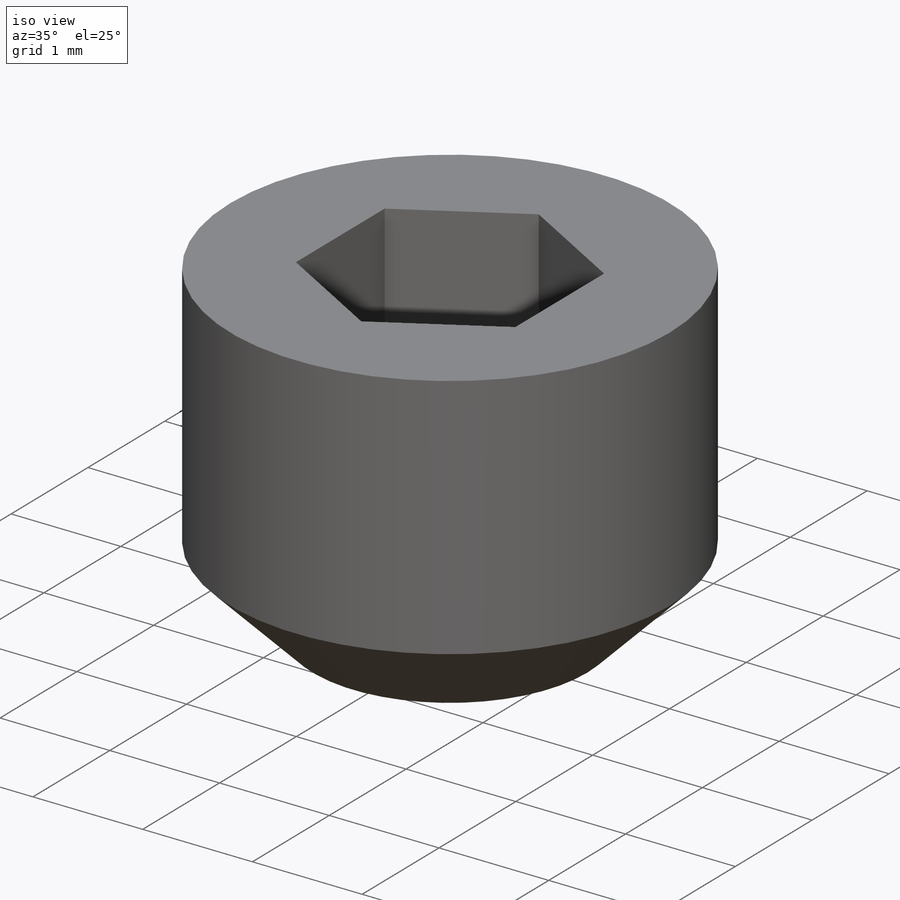
[diagram: iso view]
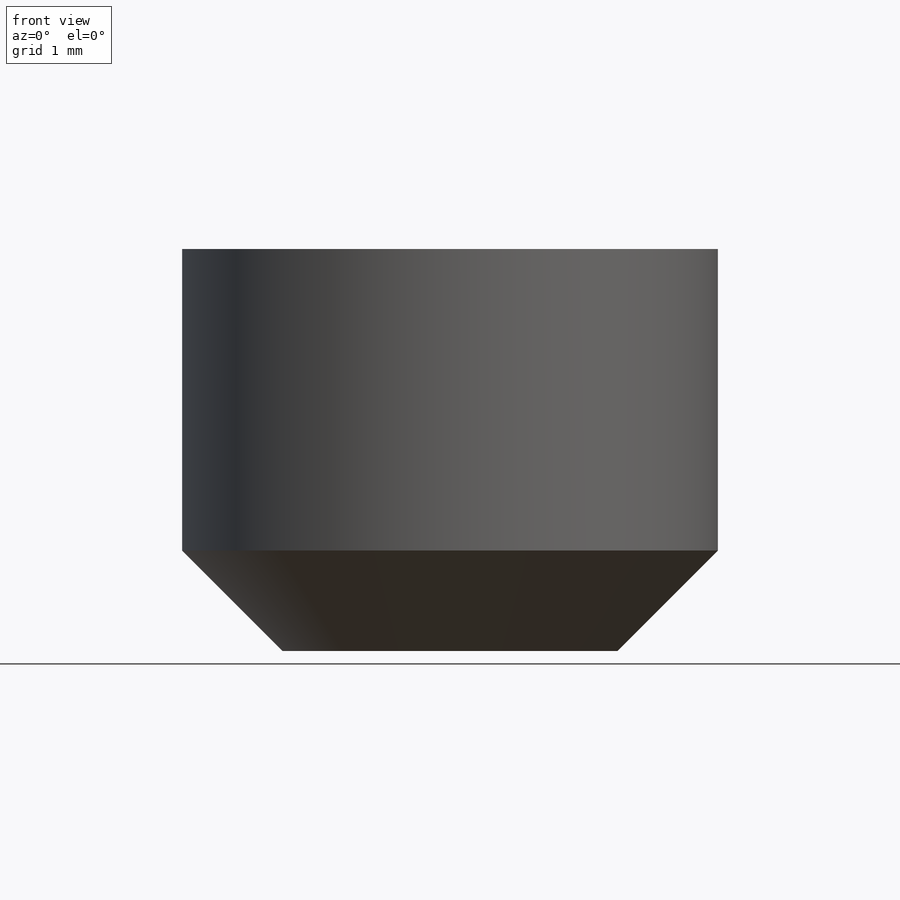
[diagram: front view]
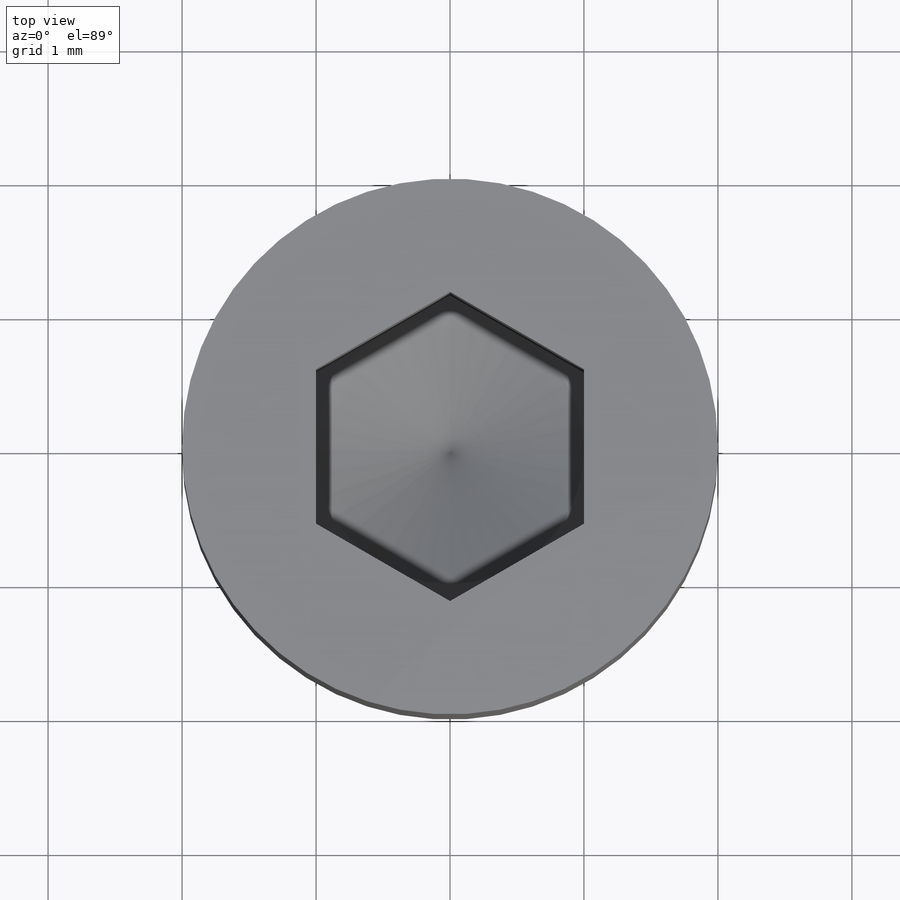
[diagram: top view]
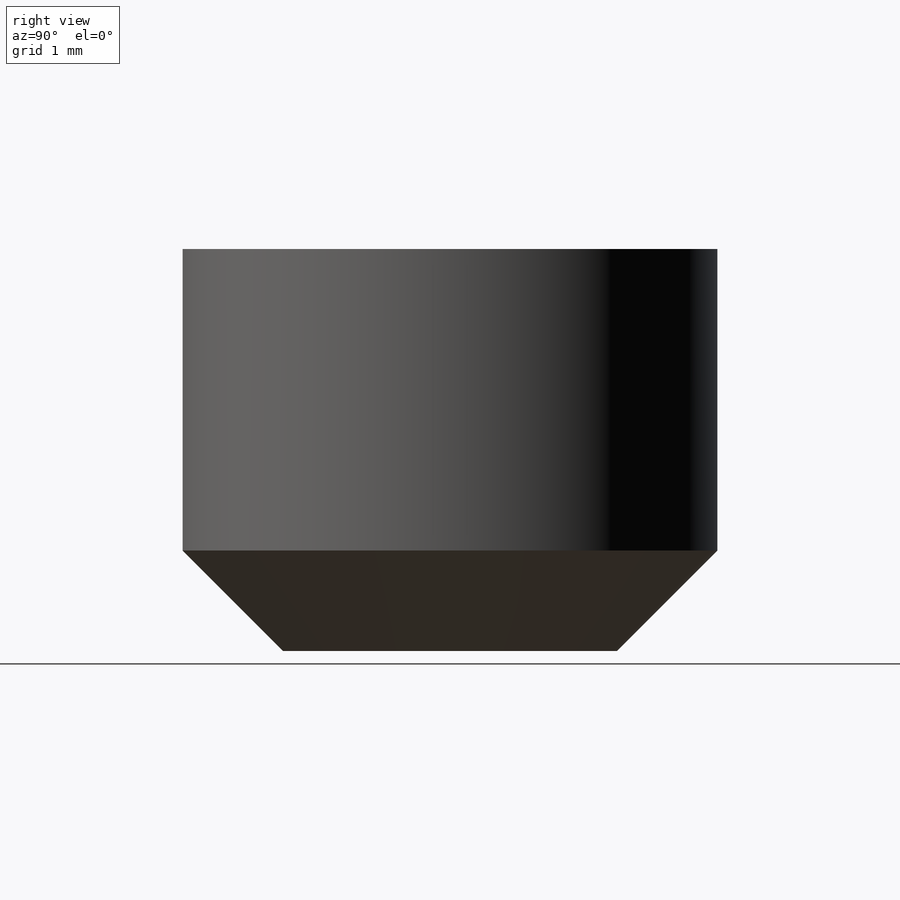
[diagram: right view]
SOLIDWORKS PART (.sldprt)
format: sldprt  version: not decoded by parser v0  size: 190,464 bytes
history: native  units: mm
features: sketch x4, cut_revolve x2, material x1, revolve x1, thread x1, cut_extrude x1 (+11 scaffold rows collapsed)
feature tree (21):
  scaffold x11  (default folders/planes/origin — collapsed)
  material  "Material <not specified>"
  sketch  "Sketch1"  dims[D1=~46.928108mm D2=~29.330067mm]
  revolve  "Revolve1"  [1 undecoded]
  thread  "Cosmetic Thread1"  [2 undecoded]
  sketch  "Sketch2"  dims[c1.D1=~1.811337mm c2.D1=~0.493589mm c3.D1=60.0deg c3.D2=~1.266234mm]
  cut_revolve  "Cut-Revolve1"  Angle=360deg
  sketch  "Sketch3"  dims[D1=1.5mm]
  cut_extrude  "Cut-Extrude1"  [1 undecoded]
  sketch  "Sketch4"  dims[c1.D1=~2.163163mm c2.D1=0.5mm c3.D1=45.0deg]
  cut_revolve  "Cut-Revolve2"  Angle=360deg
decode coverage: 6 of 9 modeling features carry decoded parameters
note: ~ marks probable driven/reference dimensions
note: 4 parameter values undecoded
summary: no parameter record found for 3 features
note: suppression state not decoded; provenance and decode notes live in map.json
